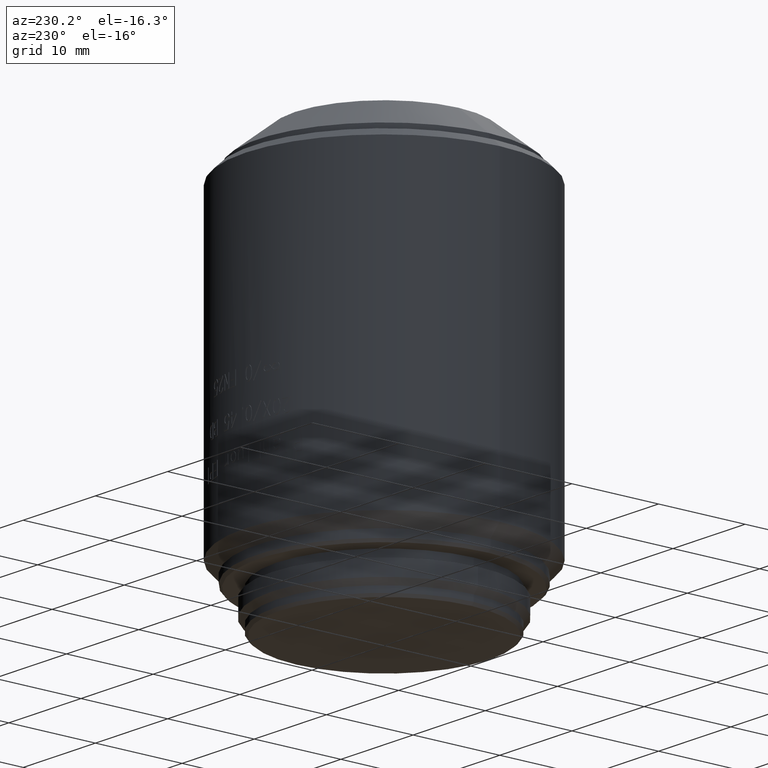
[diagram: clean part render]
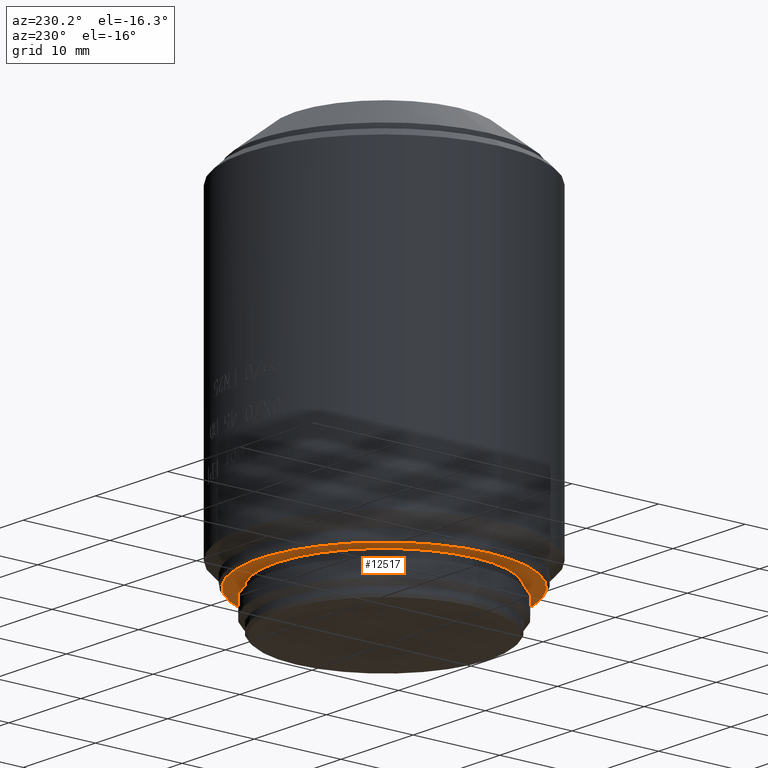
[diagram: same view with one face highlighted and labeled with its STEP entity id]
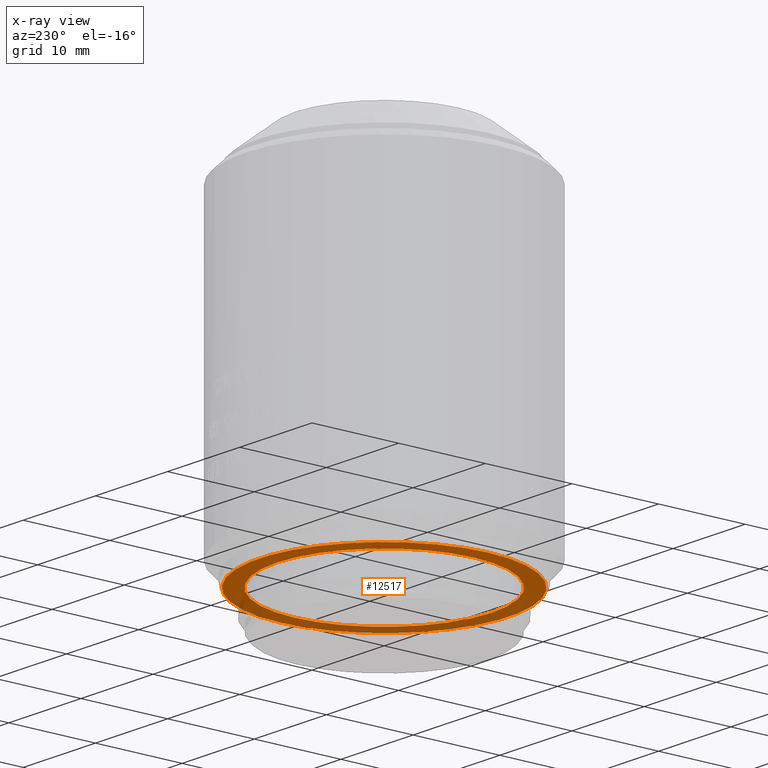
[diagram: x-ray of the same camera — body ghosted, the highlighted face saturated]
A machine part, auxiliary view. The second image highlights one B-rep face of the part: STEP entity #12517.
The next image is the same camera in x-ray: the body ghosted, the highlighted face saturated — about 40% of this face is hidden behind the body in this view.
In plain terms, the highlighted planar face has unit normal (0, 0, -1).
Its self-contained STEP definition (entity closure, byte-faithful):
#1306 = FACE_OUTER_BOUND ( 'NONE', #7252, .T. ) ;
#1341 = DIRECTION ( 'NONE',  ( -1.000000000000000000, 0.000000000000000000, 0.000000000000000000 ) ) ;
#1737 = EDGE_CURVE ( 'NONE', #3445, #19465, #18429, .T. ) ;
#1860 = DIRECTION ( 'NONE',  ( 0.000000000000000000, 0.000000000000000000, -1.000000000000000000 ) ) ;
#1885 = AXIS2_PLACEMENT_3D ( 'NONE', #23148, #11355, #9415 ) ;
#2673 = AXIS2_PLACEMENT_3D ( 'NONE', #21163, #14837, #11186 ) ;
#3128 = DIRECTION ( 'NONE',  ( 0.000000000000000000, -1.000000000000000000, 0.000000000000000000 ) ) ;
#3445 = VERTEX_POINT ( 'NONE', #15996 ) ;
#3575 = VERTEX_POINT ( 'NONE', #13291 ) ;
#3827 = EDGE_CURVE ( 'NONE', #6767, #3575, #20474, .T. ) ;
#4407 = ORIENTED_EDGE ( 'NONE', *, *, #3827, .T. ) ;
#6441 = CIRCLE ( 'NONE', #1885, 14.40000000000000036 ) ;
#6767 = VERTEX_POINT ( 'NONE', #7328 ) ;
#7252 = EDGE_LOOP ( 'NONE', ( #4407, #8845 ) ) ;
#7328 = CARTESIAN_POINT ( 'NONE',  ( 14.40000000000000036, 0.000000000000000000, 4.400000000000000355 ) ) ;
#7428 = CARTESIAN_POINT ( 'NONE',  ( 0.000000000000000000, 0.000000000000000000, 4.400000000000000355 ) ) ;
#8845 = ORIENTED_EDGE ( 'NONE', *, *, #23836, .T. ) ;
#9212 = PLANE ( 'NONE',  #16088 ) ;
#9415 = DIRECTION ( 'NONE',  ( -1.000000000000000000, 0.000000000000000000, 0.000000000000000000 ) ) ;
#11186 = DIRECTION ( 'NONE',  ( -1.000000000000000000, 0.000000000000000000, 0.000000000000000000 ) ) ;
#11355 = DIRECTION ( 'NONE',  ( 0.000000000000000000, 0.000000000000000000, -1.000000000000000000 ) ) ;
#11862 = AXIS2_PLACEMENT_3D ( 'NONE', #7428, #15337, #13900 ) ;
#12517 = ADVANCED_FACE ( 'NONE', ( #19065, #1306 ), #9212, .T. ) ;
#12979 = DIRECTION ( 'NONE',  ( 0.000000000000000000, 0.000000000000000000, -1.000000000000000000 ) ) ;
#13062 = EDGE_LOOP ( 'NONE', ( #13884, #17436 ) ) ;
#13291 = CARTESIAN_POINT ( 'NONE',  ( -14.40000000000000036, 1.781861092759398693E-15, 4.400000000000000355 ) ) ;
#13884 = ORIENTED_EDGE ( 'NONE', *, *, #1737, .F. ) ;
#13900 = DIRECTION ( 'NONE',  ( -1.000000000000000000, 0.000000000000000000, 0.000000000000000000 ) ) ;
#14802 = CARTESIAN_POINT ( 'NONE',  ( 0.000000000000000000, 0.000000000000000000, 4.400000000000000355 ) ) ;
#14837 = DIRECTION ( 'NONE',  ( 0.000000000000000000, 0.000000000000000000, -1.000000000000000000 ) ) ;
#15337 = DIRECTION ( 'NONE',  ( 0.000000000000000000, 0.000000000000000000, -1.000000000000000000 ) ) ;
#15996 = CARTESIAN_POINT ( 'NONE',  ( 12.40000000000000036, 0.000000000000000000, 4.400000000000000355 ) ) ;
#16088 = AXIS2_PLACEMENT_3D ( 'NONE', #14802, #12979, #3128 ) ;
#17436 = ORIENTED_EDGE ( 'NONE', *, *, #18392, .F. ) ;
#18392 = EDGE_CURVE ( 'NONE', #19465, #3445, #23043, .T. ) ;
#18429 = CIRCLE ( 'NONE', #21719, 12.40000000000000036 ) ;
#19065 = FACE_BOUND ( 'NONE', #13062, .T. ) ;
#19465 = VERTEX_POINT ( 'NONE', #21012 ) ;
#20474 = CIRCLE ( 'NONE', #2673, 14.40000000000000036 ) ;
#21012 = CARTESIAN_POINT ( 'NONE',  ( -12.40000000000000036, 1.518562030942717967E-15, 4.400000000000000355 ) ) ;
#21163 = CARTESIAN_POINT ( 'NONE',  ( 0.000000000000000000, 0.000000000000000000, 4.400000000000000355 ) ) ;
#21545 = CARTESIAN_POINT ( 'NONE',  ( 0.000000000000000000, 0.000000000000000000, 4.400000000000000355 ) ) ;
#21719 = AXIS2_PLACEMENT_3D ( 'NONE', #21545, #1860, #1341 ) ;
#23043 = CIRCLE ( 'NONE', #11862, 12.40000000000000036 ) ;
#23148 = CARTESIAN_POINT ( 'NONE',  ( 0.000000000000000000, 0.000000000000000000, 4.400000000000000355 ) ) ;
#23836 = EDGE_CURVE ( 'NONE', #3575, #6767, #6441, .T. ) ;